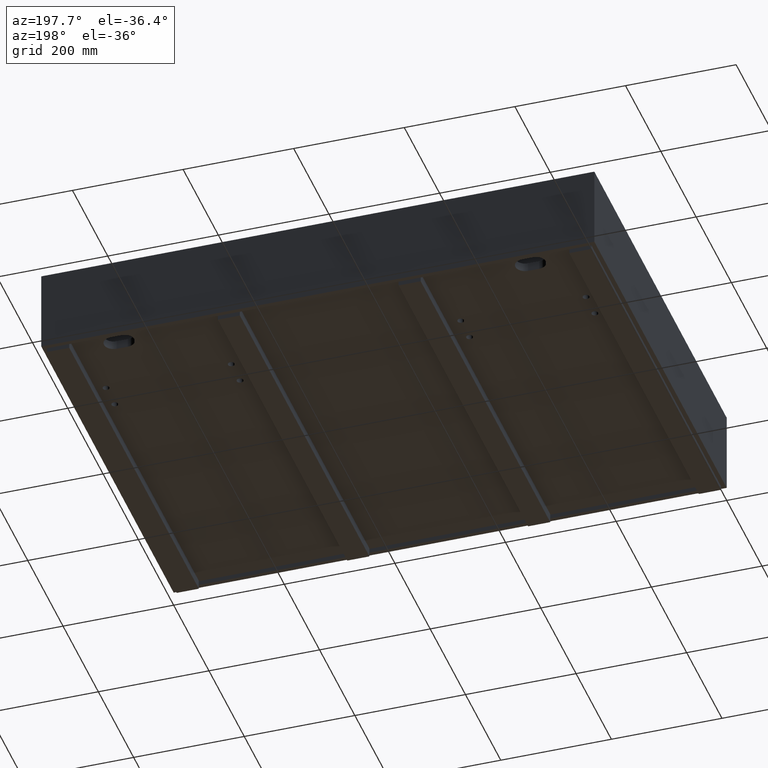
[diagram: clean part render]
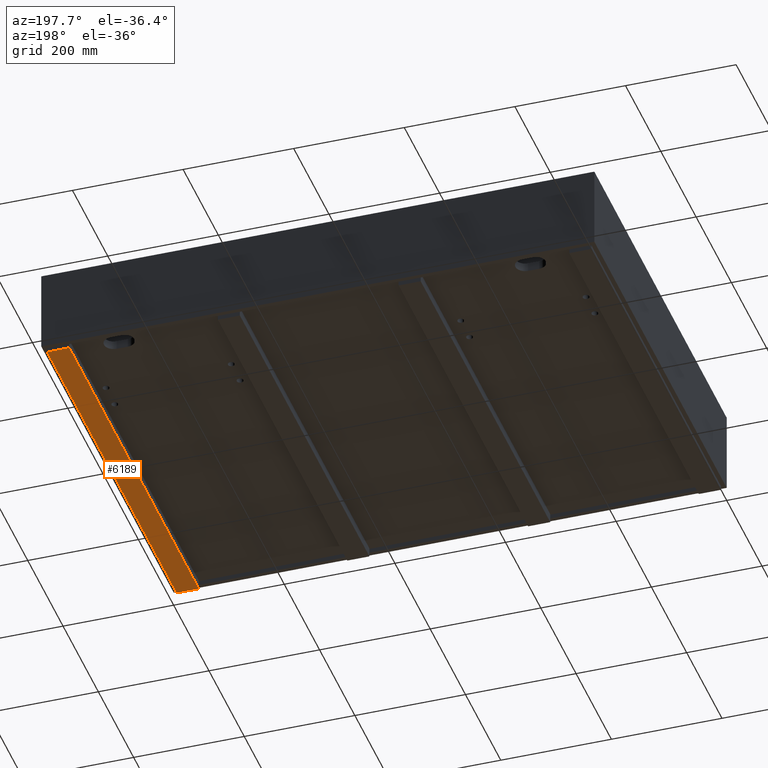
[diagram: same view with one face highlighted and labeled with its STEP entity id]
A machine part, auxiliary view. The second image highlights one B-rep face of the part: STEP entity #6189.
In plain terms, the highlighted planar face has unit normal (-0, 0, -1).
Its self-contained STEP definition (entity closure, byte-faithful):
#651 = DIRECTION ( 'NONE',  ( -0.0000000000000000000, 0.0000000000000000000, -1.000000000000000000 ) ) ;
#874 = VECTOR ( 'NONE', #17367, 1000.000000000000000 ) ;
#961 = EDGE_CURVE ( 'NONE', #10361, #5438, #6472, .T. ) ;
#1299 = CARTESIAN_POINT ( 'NONE',  ( 992.0000000000000000, 741.9999000000000251, -158.0000000000003695 ) ) ;
#1874 = ORIENTED_EDGE ( 'NONE', *, *, #7000, .T. ) ;
#1987 = FACE_OUTER_BOUND ( 'NONE', #15895, .T. ) ;
#2501 = ORIENTED_EDGE ( 'NONE', *, *, #961, .T. ) ;
#3013 = CARTESIAN_POINT ( 'NONE',  ( 992.0000000000000000, 741.9999000000000251, -158.0000000000003695 ) ) ;
#3039 = CARTESIAN_POINT ( 'NONE',  ( 952.0000000000000000, 741.9999000000000251, -158.0000000000003695 ) ) ;
#3082 = CARTESIAN_POINT ( 'NONE',  ( 951.9999999999998863, 8.000000000000007105, -158.0000000000003695 ) ) ;
#3288 = CARTESIAN_POINT ( 'NONE',  ( 952.0000000000000000, 741.9999000000000251, -158.0000000000003695 ) ) ;
#3554 = ORIENTED_EDGE ( 'NONE', *, *, #16940, .T. ) ;
#5277 = CARTESIAN_POINT ( 'NONE',  ( 991.9999999999998863, 8.000000000000007105, -158.0000000000003695 ) ) ;
#5438 = VERTEX_POINT ( 'NONE', #3082 ) ;
#5971 = EDGE_CURVE ( 'NONE', #13737, #14915, #13569, .T. ) ;
#6134 = DIRECTION ( 'NONE',  ( -1.000000000000000000, -5.134470712545126739E-37, 0.0000000000000000000 ) ) ;
#6189 = ADVANCED_FACE ( 'NONE', ( #1987 ), #7463, .T. ) ;
#6472 = LINE ( 'NONE', #11922, #874 ) ;
#6770 = DIRECTION ( 'NONE',  ( 1.000000000000000000, 5.134470712545126739E-37, 0.0000000000000000000 ) ) ;
#7000 = EDGE_CURVE ( 'NONE', #5438, #13737, #15549, .T. ) ;
#7002 = AXIS2_PLACEMENT_3D ( 'NONE', #12911, #651, #6134 ) ;
#7463 = PLANE ( 'NONE',  #7002 ) ;
#8478 = DIRECTION ( 'NONE',  ( -1.512565634716239722E-16, -1.000000000000000000, 3.611118645726067224E-35 ) ) ;
#8757 = DIRECTION ( 'NONE',  ( 1.512565634716239722E-16, 1.000000000000000000, -3.611118645726067224E-35 ) ) ;
#10361 = VERTEX_POINT ( 'NONE', #5277 ) ;
#11922 = CARTESIAN_POINT ( 'NONE',  ( 991.9999999999998863, 8.000000000000007105, -158.0000000000003695 ) ) ;
#12911 = CARTESIAN_POINT ( 'NONE',  ( 0.0000000000000000000, 0.0000000000000000000, -158.0000000000003695 ) ) ;
#13569 = LINE ( 'NONE', #1299, #15817 ) ;
#13737 = VERTEX_POINT ( 'NONE', #3039 ) ;
#14603 = VECTOR ( 'NONE', #8757, 1000.000000000000000 ) ;
#14915 = VERTEX_POINT ( 'NONE', #15290 ) ;
#15280 = LINE ( 'NONE', #3013, #16338 ) ;
#15290 = CARTESIAN_POINT ( 'NONE',  ( 992.0000000000000000, 741.9999000000000251, -158.0000000000003695 ) ) ;
#15437 = ORIENTED_EDGE ( 'NONE', *, *, #5971, .T. ) ;
#15549 = LINE ( 'NONE', #3288, #14603 ) ;
#15817 = VECTOR ( 'NONE', #6770, 1000.000000000000000 ) ;
#15895 = EDGE_LOOP ( 'NONE', ( #3554, #2501, #1874, #15437 ) ) ;
#16338 = VECTOR ( 'NONE', #8478, 1000.000000000000000 ) ;
#16940 = EDGE_CURVE ( 'NONE', #14915, #10361, #15280, .T. ) ;
#17367 = DIRECTION ( 'NONE',  ( -1.000000000000000000, 4.336808689942015271E-17, 0.0000000000000000000 ) ) ;